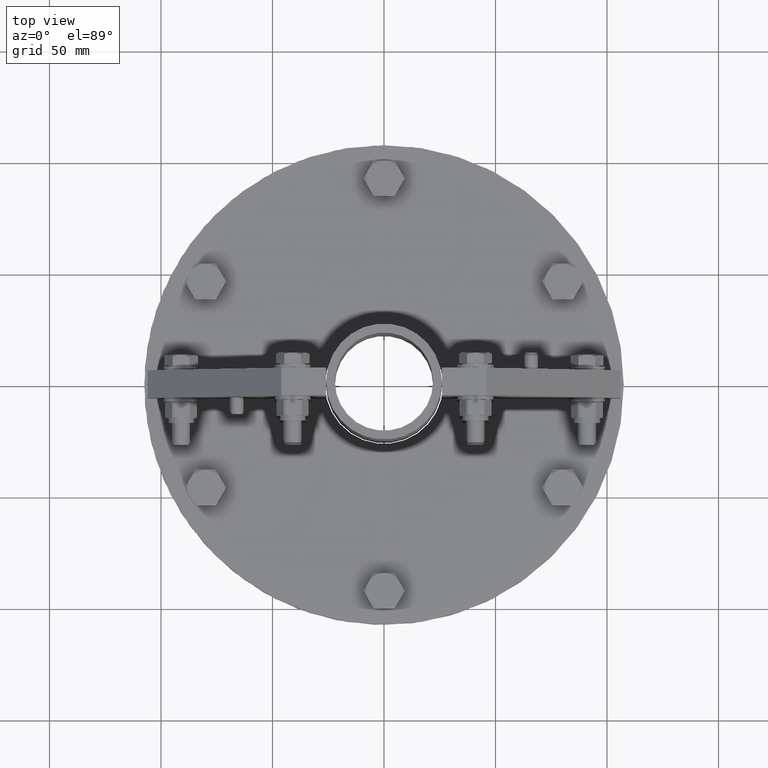
[diagram: clean part render]
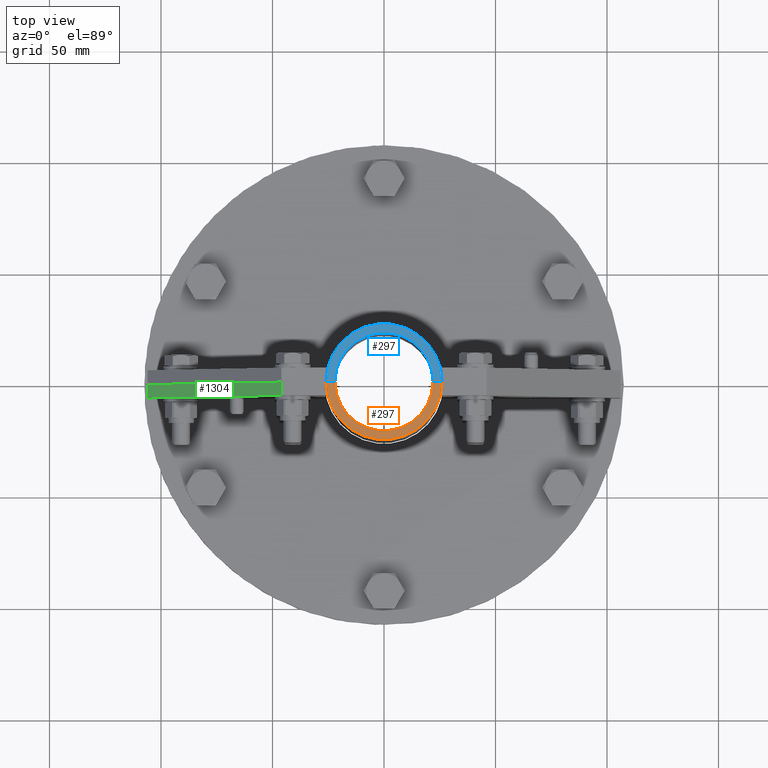
[diagram: same view with three faces highlighted in distinct colors, each labeled with its STEP entity id]
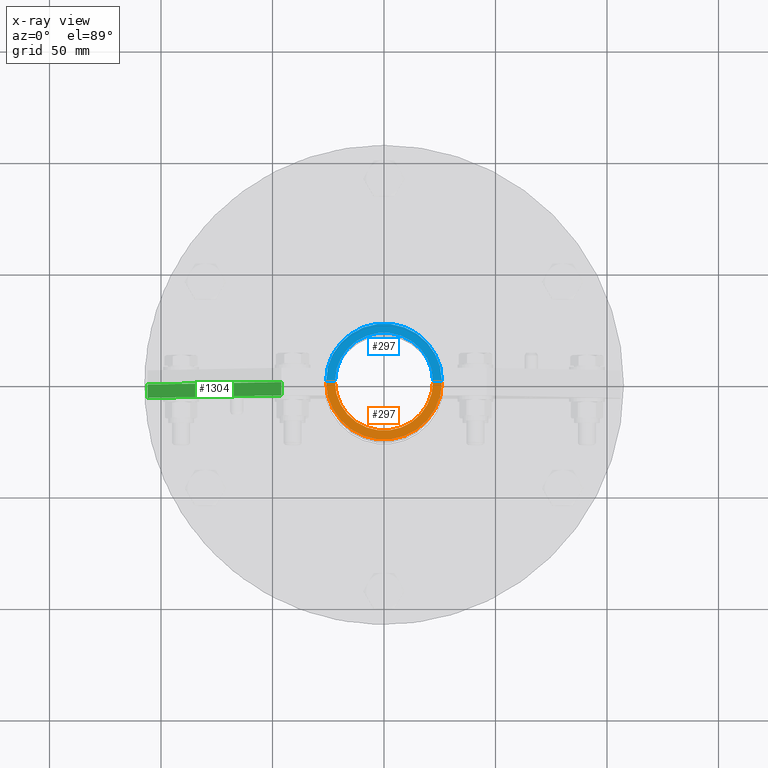
[diagram: x-ray of the same camera — body ghosted, the three highlighted faces saturated]
A machine part, top view with three faces highlighted in distinct colors.
The next image is the same camera in x-ray (body ghosted, the three faces saturated) — at least one of them is partly hidden behind the body in this view.
Their STEP definitions:

[orange] entity #297 — the highlighted planar face has unit normal (-0, -0, -1).
#151=CARTESIAN_POINT('',(25.999230757851276,0.2,91.0));
#152=VERTEX_POINT('',#151);
#161=CARTESIAN_POINT('',(21.999090890307265,0.2,91.0));
#162=VERTEX_POINT('',#161);
#163=CARTESIAN_POINT('',(21.999090890307265,0.2,91.0));
#164=DIRECTION('',(1.0,0.0,0.0));
#165=VECTOR('',#164,4.000139867544011);
#166=LINE('',#163,#165);
#167=EDGE_CURVE('',#162,#152,#166,.T.);
#193=CARTESIAN_POINT('',(-25.999230757851276,0.2,91.0));
#194=VERTEX_POINT('',#193);
#209=CARTESIAN_POINT('',(-21.999090890307265,0.2,91.0));
#210=VERTEX_POINT('',#209);
#217=CARTESIAN_POINT('',(-25.999230757851276,0.2,91.0));
#218=DIRECTION('',(1.0,0.0,0.0));
#219=VECTOR('',#218,4.000139867544011);
#220=LINE('',#217,#219);
#221=EDGE_CURVE('',#194,#210,#220,.T.);
#258=CARTESIAN_POINT('',(0.0,0.0,91.0));
#259=DIRECTION('',(0.0,0.0,-1.0));
#260=DIRECTION('',(-1.0,0.0,0.0));
#261=AXIS2_PLACEMENT_3D('',#258,#259,#260);
#262=CIRCLE('',#261,22.0);
#263=EDGE_CURVE('',#210,#162,#262,.T.);
#274=CARTESIAN_POINT('',(0.0,0.0,91.0));
#275=DIRECTION('',(0.0,0.0,-1.0));
#276=DIRECTION('',(-1.0,0.0,0.0));
#277=AXIS2_PLACEMENT_3D('',#274,#275,#276);
#278=CIRCLE('',#277,25.999999999999996);
#279=EDGE_CURVE('',#194,#152,#278,.T.);
#286=CARTESIAN_POINT('',(0.0,0.0,91.0));
#287=DIRECTION('',(0.0,0.0,-1.0));
#288=DIRECTION('',(-1.0,0.0,0.0));
#289=AXIS2_PLACEMENT_3D('',#286,#287,#288);
#290=PLANE('',#289);
#291=ORIENTED_EDGE('',*,*,#221,.T.);
#292=ORIENTED_EDGE('',*,*,#263,.T.);
#293=ORIENTED_EDGE('',*,*,#167,.T.);
#294=ORIENTED_EDGE('',*,*,#279,.F.);
#295=EDGE_LOOP('',(#291,#292,#293,#294));
#296=FACE_OUTER_BOUND('',#295,.T.);
#297=ADVANCED_FACE('',(#296),#290,.F.);

[blue] entity #297 — the highlighted planar face has unit normal (0, 0, -1).
#151=CARTESIAN_POINT('',(25.999230757851276,0.2,91.0));
#152=VERTEX_POINT('',#151);
#161=CARTESIAN_POINT('',(21.999090890307265,0.2,91.0));
#162=VERTEX_POINT('',#161);
#163=CARTESIAN_POINT('',(21.999090890307265,0.2,91.0));
#164=DIRECTION('',(1.0,0.0,0.0));
#165=VECTOR('',#164,4.000139867544011);
#166=LINE('',#163,#165);
#167=EDGE_CURVE('',#162,#152,#166,.T.);
#193=CARTESIAN_POINT('',(-25.999230757851276,0.2,91.0));
#194=VERTEX_POINT('',#193);
#209=CARTESIAN_POINT('',(-21.999090890307265,0.2,91.0));
#210=VERTEX_POINT('',#209);
#217=CARTESIAN_POINT('',(-25.999230757851276,0.2,91.0));
#218=DIRECTION('',(1.0,0.0,0.0));
#219=VECTOR('',#218,4.000139867544011);
#220=LINE('',#217,#219);
#221=EDGE_CURVE('',#194,#210,#220,.T.);
#258=CARTESIAN_POINT('',(0.0,0.0,91.0));
#259=DIRECTION('',(0.0,0.0,-1.0));
#260=DIRECTION('',(-1.0,0.0,0.0));
#261=AXIS2_PLACEMENT_3D('',#258,#259,#260);
#262=CIRCLE('',#261,22.0);
#263=EDGE_CURVE('',#210,#162,#262,.T.);
#274=CARTESIAN_POINT('',(0.0,0.0,91.0));
#275=DIRECTION('',(0.0,0.0,-1.0));
#276=DIRECTION('',(-1.0,0.0,0.0));
#277=AXIS2_PLACEMENT_3D('',#274,#275,#276);
#278=CIRCLE('',#277,25.999999999999996);
#279=EDGE_CURVE('',#194,#152,#278,.T.);
#286=CARTESIAN_POINT('',(0.0,0.0,91.0));
#287=DIRECTION('',(0.0,0.0,-1.0));
#288=DIRECTION('',(-1.0,0.0,0.0));
#289=AXIS2_PLACEMENT_3D('',#286,#287,#288);
#290=PLANE('',#289);
#291=ORIENTED_EDGE('',*,*,#221,.T.);
#292=ORIENTED_EDGE('',*,*,#263,.T.);
#293=ORIENTED_EDGE('',*,*,#167,.T.);
#294=ORIENTED_EDGE('',*,*,#279,.F.);
#295=EDGE_LOOP('',(#291,#292,#293,#294));
#296=FACE_OUTER_BOUND('',#295,.T.);
#297=ADVANCED_FACE('',(#296),#290,.F.);

[green] entity #1304 — the highlighted planar face has unit normal (-0.7348, -0, 0.6783).
#1213=CARTESIAN_POINT('',(20.0,85.0,-3.0));
#1214=VERTEX_POINT('',#1213);
#1221=CARTESIAN_POINT('',(80.0,20.000000000000014,-3.0));
#1222=VERTEX_POINT('',#1221);
#1223=CARTESIAN_POINT('',(80.0,20.000000000000014,-3.0));
#1224=DIRECTION('',(-0.678280102733066,0.734803444627488,0.0));
#1225=VECTOR('',#1224,88.459030064770658);
#1226=LINE('',#1223,#1225);
#1227=EDGE_CURVE('',#1222,#1214,#1226,.T.);
#1257=CARTESIAN_POINT('',(20.0,85.0,3.0));
#1258=VERTEX_POINT('',#1257);
#1265=CARTESIAN_POINT('',(20.0,85.0,3.0));
#1266=DIRECTION('',(0.0,0.0,-1.0));
#1267=VECTOR('',#1266,6.000000000000001);
#1268=LINE('',#1265,#1267);
#1269=EDGE_CURVE('',#1258,#1214,#1268,.T.);
#1281=CARTESIAN_POINT('',(20.0,85.0,0.0));
#1282=DIRECTION('',(0.734803444627488,0.678280102733066,0.0));
#1283=DIRECTION('',(0.0,0.0,-1.0));
#1284=AXIS2_PLACEMENT_3D('',#1281,#1282,#1283);
#1285=PLANE('',#1284);
#1286=CARTESIAN_POINT('',(80.0,20.000000000000014,3.0));
#1287=VERTEX_POINT('',#1286);
#1288=CARTESIAN_POINT('',(20.0,85.0,3.0));
#1289=DIRECTION('',(0.678280102733066,-0.734803444627488,0.0));
#1290=VECTOR('',#1289,88.459030064770658);
#1291=LINE('',#1288,#1290);
#1292=EDGE_CURVE('',#1258,#1287,#1291,.T.);
#1293=ORIENTED_EDGE('',*,*,#1292,.T.);
#1294=CARTESIAN_POINT('',(80.0,20.000000000000014,3.0));
#1295=DIRECTION('',(0.0,0.0,-1.0));
#1296=VECTOR('',#1295,6.000000000000001);
#1297=LINE('',#1294,#1296);
#1298=EDGE_CURVE('',#1287,#1222,#1297,.T.);
#1299=ORIENTED_EDGE('',*,*,#1298,.T.);
#1300=ORIENTED_EDGE('',*,*,#1227,.T.);
#1301=ORIENTED_EDGE('',*,*,#1269,.F.);
#1302=EDGE_LOOP('',(#1293,#1299,#1300,#1301));
#1303=FACE_OUTER_BOUND('',#1302,.T.);
#1304=ADVANCED_FACE('',(#1303),#1285,.T.);